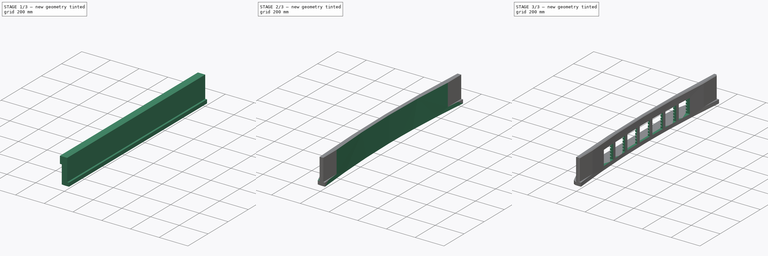
[diagram: build sequence overview — one tinted view per stage of 3, left to right]
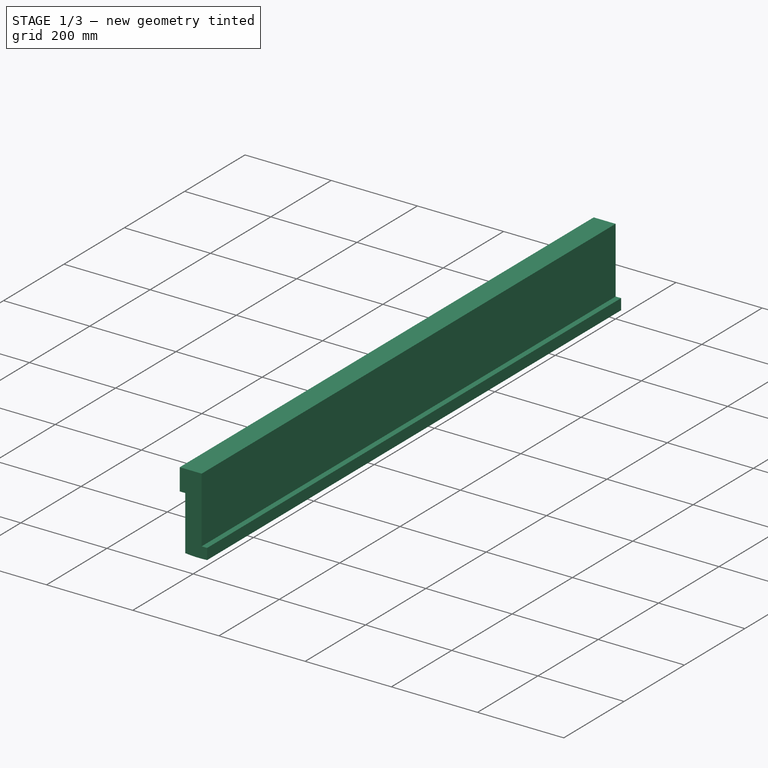
[diagram: stage 1 of 3 — iso view after this stage's code; geometry added in this stage tinted green]
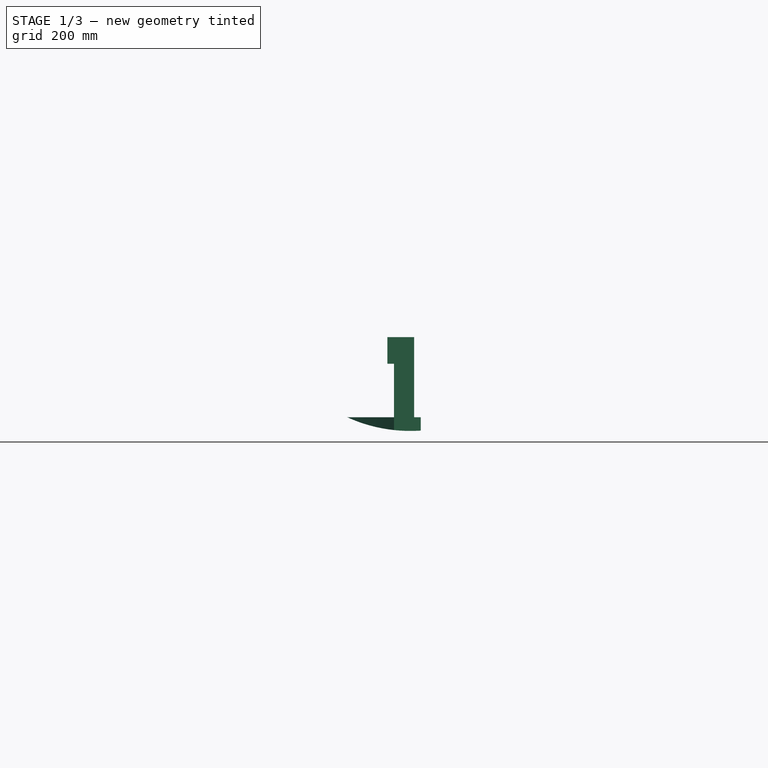
[diagram: stage 1 of 3 — front view after this stage's code; geometry added in this stage tinted green]
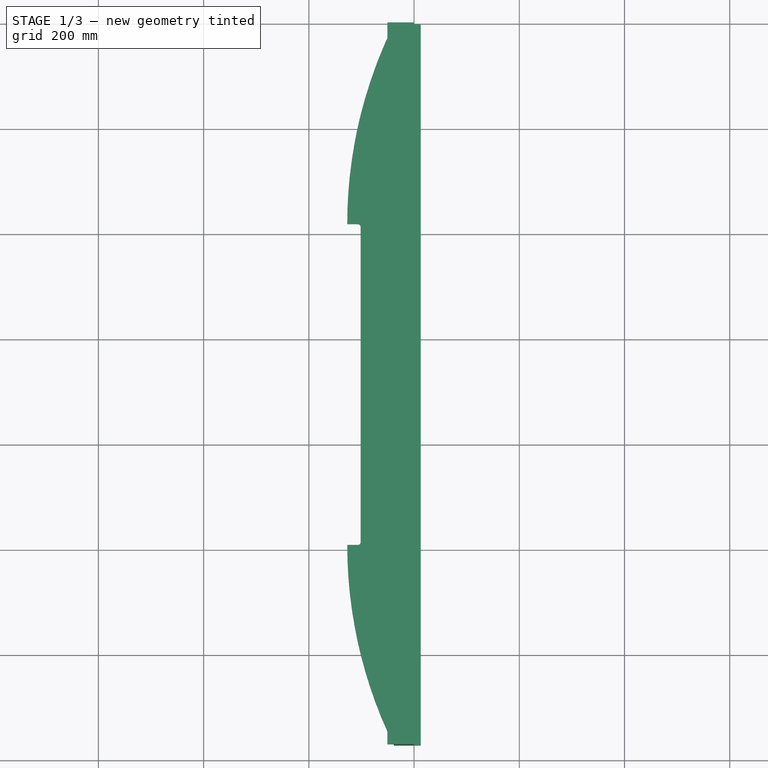
[diagram: stage 1 of 3 — top view after this stage's code; geometry added in this stage tinted green]
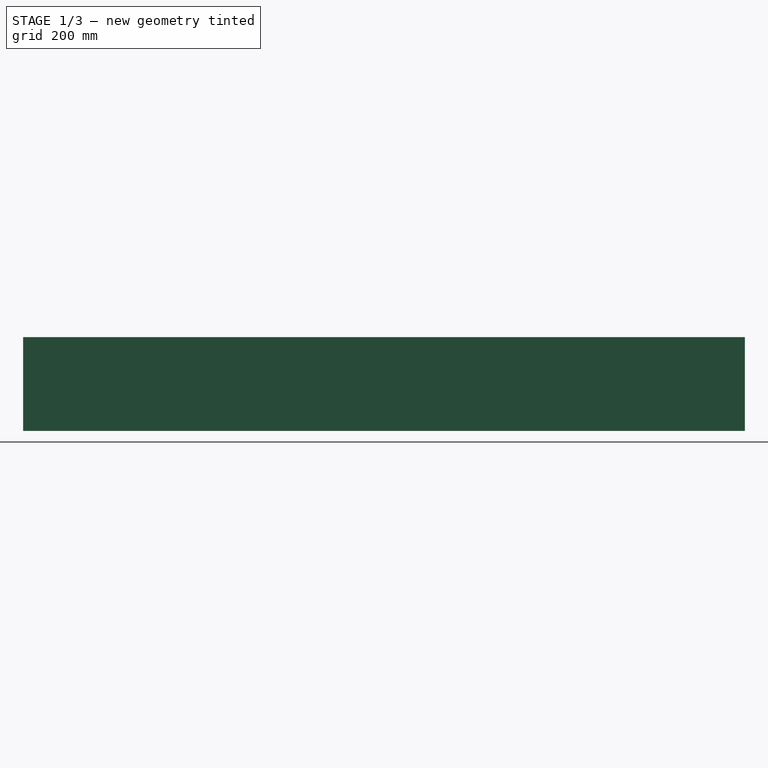
[diagram: stage 1 of 3 — right view after this stage's code; geometry added in this stage tinted green]
FCSTD DOCUMENT  (FreeCAD 1.0R39109 (Git))
Label: Body Kit
License: All rights reserved
LicenseURL: https://en.wikipedia.org/wiki/All_rights_reserved
objects: Sketcher::SketchObject×6, PartDesign::Pocket×5, PartDesign::Pad×1, PartDesign::Fillet×1, PartDesign::Chamfer×1, PartDesign::Body×1
note: 37 computed .brp shape members not serialized (recipe doc carries the construction recipe); baked Part::Feature solids carry a one-line shape summary decoded from their .brp

FEATURE [Sketcher::SketchObject] Sketch
  ArcFitTolerance = 1e-06
  AttachmentSupport = -> [XZ_Plane]
  FullyConstrained = true
  MakeInternals = false
  MapMode = 5
  Placement = pos=(0,0,0) rot=(1,0,0;1.5708rad)
  sketch-geometry (9):
    g0: LineSegment StartX=0 StartY=0 StartZ=0 EndX=0 EndY=152.4 EndZ=0
    g1: LineSegment StartX=0 StartY=152.4 StartZ=0 EndX=-50.8 EndY=152.4 EndZ=0
    g2: LineSegment StartX=-50.8 StartY=152.4 StartZ=0 EndX=-50.8 EndY=101.6 EndZ=0
    g3: LineSegment StartX=-50.8 StartY=101.6 StartZ=0 EndX=-38.1 EndY=101.6 EndZ=0
    g4: LineSegment StartX=-38.1 StartY=101.6 StartZ=0 EndX=-38.1 EndY=0 EndZ=0
    g5: LineSegment StartX=-38.1 StartY=0 StartZ=0 EndX=-127 EndY=0 EndZ=0
    g6: LineSegment StartX=0 StartY=0 StartZ=0 EndX=12.7 EndY=0 EndZ=0
    g7: LineSegment StartX=12.7 StartY=0 StartZ=0 EndX=12.7 EndY=-25.4 EndZ=0
    g8: ArcOfCircle CenterX=-6.87685 CenterY=263.802 CenterZ=0 NormalX=0 NormalY=0 NormalZ=1 AngleXU=0 Radius=289.864 StartAngle=4.28509 EndAngle=4.77998
  constraints (27):
    c: Coincident(g-1,g0)
    c: PointOnObject(g0,g-2)
    c: Coincident(g0,g1)
    c: Horizontal(g1)
    c: Coincident(g1,g2)
    c: Vertical(g2)
    c: Coincident(g2,g3)
    c: Horizontal(g3)
    c: Coincident(g3,g4)
    c: Vertical(g4)
    c: PointOnObject(g4,g-1)
    c: Coincident(g5,g4)
    c: PointOnObject(g5,g-1)
    c: Coincident(g6,g0)
    c: PointOnObject(g6,g-1)
    c: Coincident(g7,g6)
    c: Vertical(g7)
    c: Coincident(g8,g5)
    c: Coincident(g8,g7)
    c: DistanceY(g4,g4) = 101.6
    c: Distance(g2,g0) = 50.8
    c: Distance(g0,g4) = 38.1
    c: DistanceY(g0,g0) = 152.4
    c: DistanceX(g6,g6) = 12.7
    c: DistanceY(g7,g7) = 25.4
    c: DistanceX(g5,g5) = 88.9
    c: Block(g8)
FEATURE [PartDesign::Pad] Pad
  Direction = (0,-1,2e-16)
  Length = 1371.6
  Length2 = 10
  Placement = pos=(0,0,0) rot=(1,0,0;1.5708rad)
  Profile = -> Sketch
  ReferenceAxis = -> Sketch [N_Axis]
  Refine = true
  Suppressed = false
  Type = 0
FEATURE [Sketcher::SketchObject] Sketch001
  ArcFitTolerance = 1e-06
  AttachmentSupport = -> [Pad]
  ExternalGeometry = -> [Pad]
  FullyConstrained = true
  MakeInternals = false
  MapMode = 5
  Placement = pos=(0,0,0) rot=(0,0,1;3.14159rad)
  sketch-geometry (11):
    g0: LineSegment StartX=127 StartY=381 StartZ=0 EndX=101.6 EndY=381 EndZ=0
    g1: LineSegment StartX=101.6 StartY=381 StartZ=0 EndX=101.6 EndY=990.6 EndZ=0
    g2: LineSegment StartX=101.6 StartY=990.6 StartZ=0 EndX=127 EndY=990.6 EndZ=0
    g3: ArcOfCircle CenterX=-733.879 CenterY=381 CenterZ=0 NormalX=0 NormalY=0 NormalZ=1 AngleXU=0 Radius=860.879 StartAngle=5.82472 EndAngle=6.28319
    g4: ArcOfCircle CenterX=-733.879 CenterY=990.6 CenterZ=0 NormalX=0 NormalY=0 NormalZ=1 AngleXU=0 Radius=860.879 StartAngle=1.91161e-08 EndAngle=0.458464
    g5: LineSegment [constr] StartX=127 StartY=381 StartZ=0 EndX=127 EndY=990.6 EndZ=0
    g6: LineSegment StartX=38.1 StartY=0 StartZ=0 EndX=127 EndY=0 EndZ=0
    g7: LineSegment StartX=127 StartY=381 StartZ=0 EndX=127 EndY=990.6 EndZ=0
    g8: LineSegment StartX=127 StartY=990.6 StartZ=0 EndX=127 EndY=1371.6 EndZ=0
    g9: LineSegment StartX=38.1 StartY=1371.6 StartZ=0 EndX=127 EndY=1371.6 EndZ=0
    g10: LineSegment StartX=127 StartY=381 StartZ=0 EndX=127 EndY=0 EndZ=0
  constraints (28):
    c: PointOnObject(g0,g-3)
    c: Horizontal(g0)
    c: Coincident(g0,g1)
    c: Vertical(g1)
    c: Coincident(g1,g2)
    c: PointOnObject(g2,g-3)
    c: Horizontal(g2)
    c: Coincident(g3,g-4)
    c: Coincident(g3,g0)
    c: Coincident(g4,g2)
    c: Coincident(g4,g-5)
    c: Vertical(g4,g3)
    c: Equal(g3,g4)
    c: Coincident(g5,g0)
    c: Coincident(g5,g2)
    c: Tangent(g3,g5)
    c: DistanceX(g0,g0) = 25.4
    c: DistanceY(g1,g1) = 609.6
    c: Coincident(g6,g3)
    c: Coincident(g6,g-4)
    c: Coincident(g7,g0)
    c: Coincident(g7,g2)
    c: Coincident(g8,g2)
    c: Coincident(g8,g-5)
    c: Coincident(g9,g4)
    c: Coincident(g9,g8)
    c: Coincident(g10,g0)
    c: Coincident(g10,g6)
FEATURE [PartDesign::Pocket] Pocket
  BaseFeature = -> Pad
  Direction = (0,0,-1)
  Length = 5
  Length2 = 5
  Placement = pos=(0,0,0) rot=(1,0,0;1.5708rad)
  Profile = -> Sketch001
  ReferenceAxis = -> Sketch001 [N_Axis]
  Refine = true
  Suppressed = false
  Type = 1
FEATURE [PartDesign::Fillet] Fillet
  Base = -> Pocket [Edge39,Edge40]
  BaseFeature = -> Pocket
  Placement = pos=(0,0,0) rot=(1,0,0;1.5708rad)
  Radius = 5
  Refine = true
  SupportTransform = false
  Suppressed = false
  UseAllEdges = false
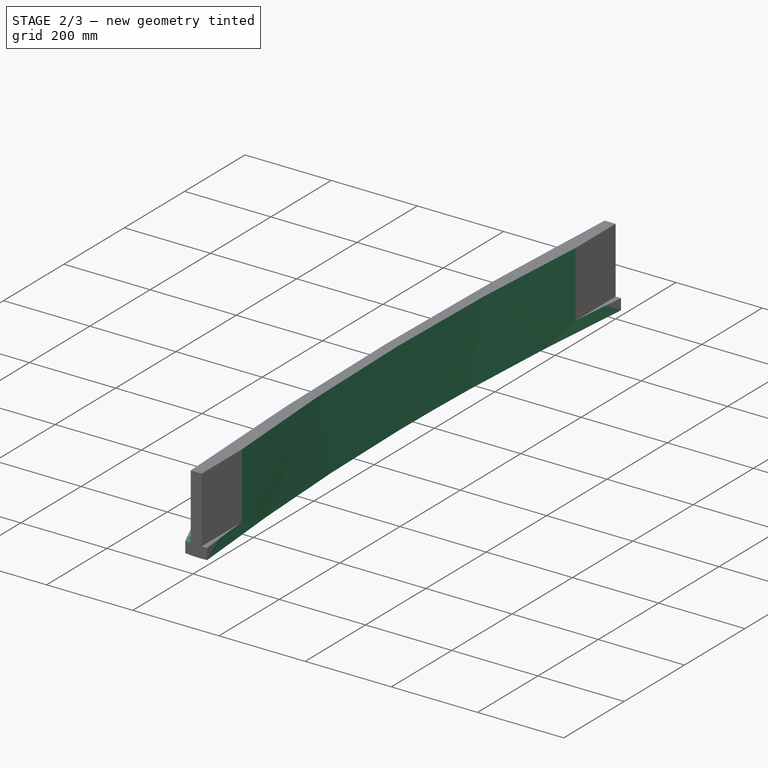
[diagram: stage 2 of 3 — iso view after this stage's code; geometry added in this stage tinted green]
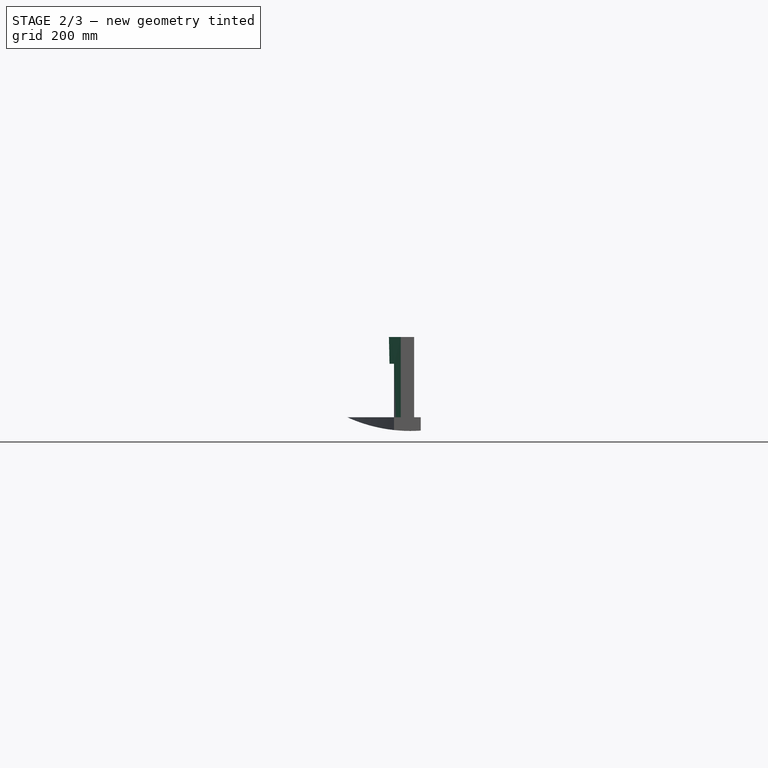
[diagram: stage 2 of 3 — front view after this stage's code; geometry added in this stage tinted green]
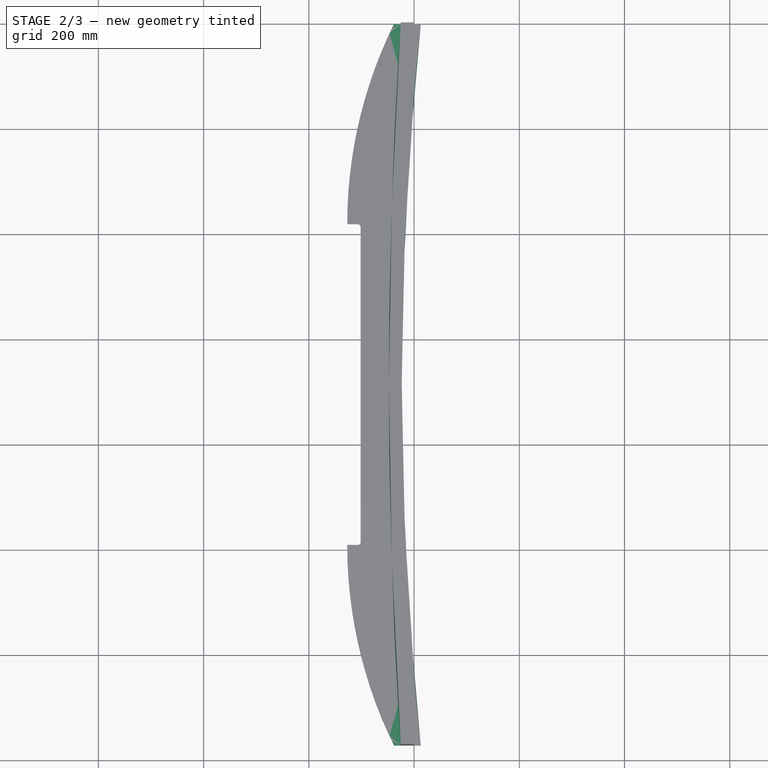
[diagram: stage 2 of 3 — top view after this stage's code; geometry added in this stage tinted green]
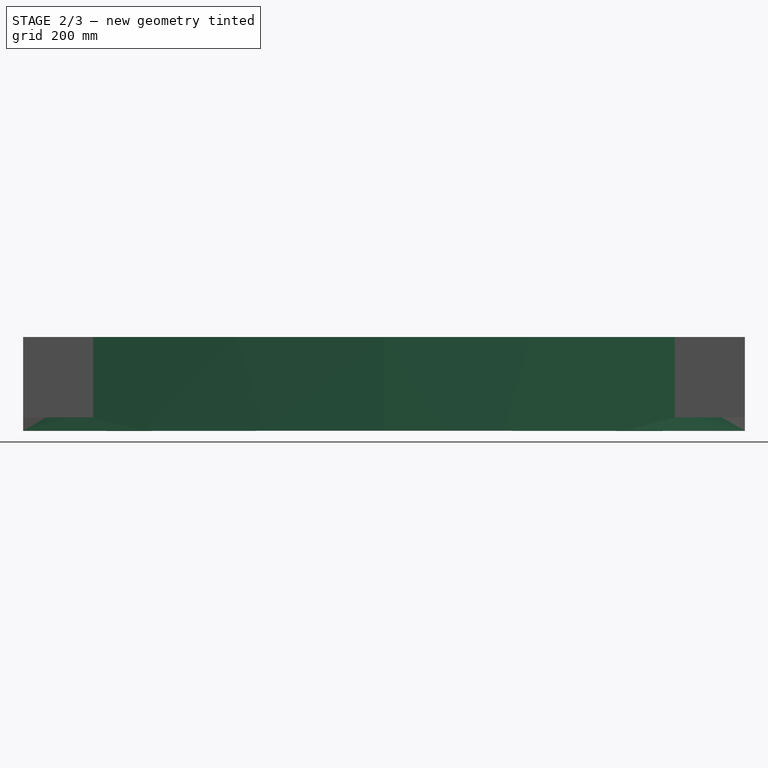
[diagram: stage 2 of 3 — right view after this stage's code; geometry added in this stage tinted green]
FEATURE [Sketcher::SketchObject] Sketch002
  ArcFitTolerance = 1e-06
  AttachmentSupport = -> [Pocket]
  ExternalGeometry = -> [Pocket]
  FullyConstrained = true
  MakeInternals = false
  MapMode = 5
  Placement = pos=(0,0,0) rot=(0,0,1;3.14159rad)
  sketch-geometry (2):
    g0: LineSegment StartX=-12.7 StartY=1371.6 StartZ=0 EndX=-12.7 EndY=6.821e-13 EndZ=0
    g1: ArcOfCircle CenterX=-6489.06 CenterY=685.8 CenterZ=0 NormalX=0 NormalY=0 NormalZ=1 AngleXU=0 Radius=6512.57 StartAngle=6.17769 EndAngle=6.38869
  constraints (5):
    c: Coincident(g1,g0)
    c: Coincident(g1,g0)
    c: Coincident(g0,g-4)
    c: Coincident(g-5,g0)
    c: Block(g1)
FEATURE [PartDesign::Pocket] Pocket001
  BaseFeature = -> Fillet
  Direction = (0,0,-1)
  Length = 5
  Length2 = 5
  Midplane = true
  Placement = pos=(0,0,0) rot=(1,0,0;1.5708rad)
  Profile = -> Sketch002
  ReferenceAxis = -> Sketch002 [N_Axis]
  Refine = true
  Suppressed = false
  Type = 1
FEATURE [Sketcher::SketchObject] Sketch003
  ArcFitTolerance = 1e-06
  AttachmentSupport = -> [Pocket001]
  ExternalGeometry = -> [Pocket001]
  FullyConstrained = true
  MakeInternals = false
  MapMode = 5
  Placement = pos=(0,6.71e-14,152.4) rot=(0,0,1;3.14159rad)
  sketch-geometry (8):
    g0: ArcOfCircle CenterX=-10461.7 CenterY=685.8 CenterZ=0 NormalX=0 NormalY=0 NormalZ=1 AngleXU=0 Radius=10509.5 StartAngle=6.21788 EndAngle=6.34849
    g1: LineSegment [constr] StartX=25.4 StartY=1371.6 StartZ=0 EndX=0 EndY=1371.6 EndZ=0
    g2: LineSegment [constr] StartX=50.8 StartY=1371.6 StartZ=0 EndX=25.4 EndY=1371.6 EndZ=0
    g3: LineSegment [constr] StartX=50.8 StartY=2.16e-12 StartZ=0 EndX=25.4 EndY=2.16e-12 EndZ=0
    g4: LineSegment [constr] StartX=25.4 StartY=2.16e-12 StartZ=0 EndX=0 EndY=0 EndZ=0
    g5: LineSegment StartX=25.4 StartY=1371.6 StartZ=0 EndX=50.8 EndY=1371.6 EndZ=0
    g6: LineSegment StartX=50.8 StartY=1371.6 StartZ=0 EndX=50.8 EndY=2.2737e-12 EndZ=0
    g7: LineSegment StartX=50.8 StartY=2.16e-12 StartZ=0 EndX=25.4 EndY=2.16e-12 EndZ=0
  constraints (19):
    c: PointOnObject(g0,g-3)
    c: Coincident(g1,g0)
    c: Coincident(g1,g-3)
    c: Coincident(g2,g-3)
    c: Coincident(g2,g0)
    c: Equal(g2,g1)
    c: Coincident(g3,g-4)
    c: Coincident(g3,g0)
    c: Horizontal(g3)
    c: Coincident(g4,g0)
    c: Coincident(g4,g-1)
    c: Equal(g3,g4)
    c: Distance(g0,g-5) = 3
    c: Coincident(g5,g0)
    c: Coincident(g5,g2)
    c: Coincident(g2,g6)
    c: Coincident(g6,g3)
    c: Coincident(g6,g7)
    c: Coincident(g7,g0)
FEATURE [PartDesign::Pocket] Pocket002
  BaseFeature = -> Pocket001
  Direction = (0,0,-1)
  Length = 152.4
  Length2 = 5
  Placement = pos=(0,0,0) rot=(1,0,0;1.5708rad)
  Profile = -> Sketch003
  ReferenceAxis = -> Sketch003 [N_Axis]
  Refine = true
  Suppressed = false
  Type = 0
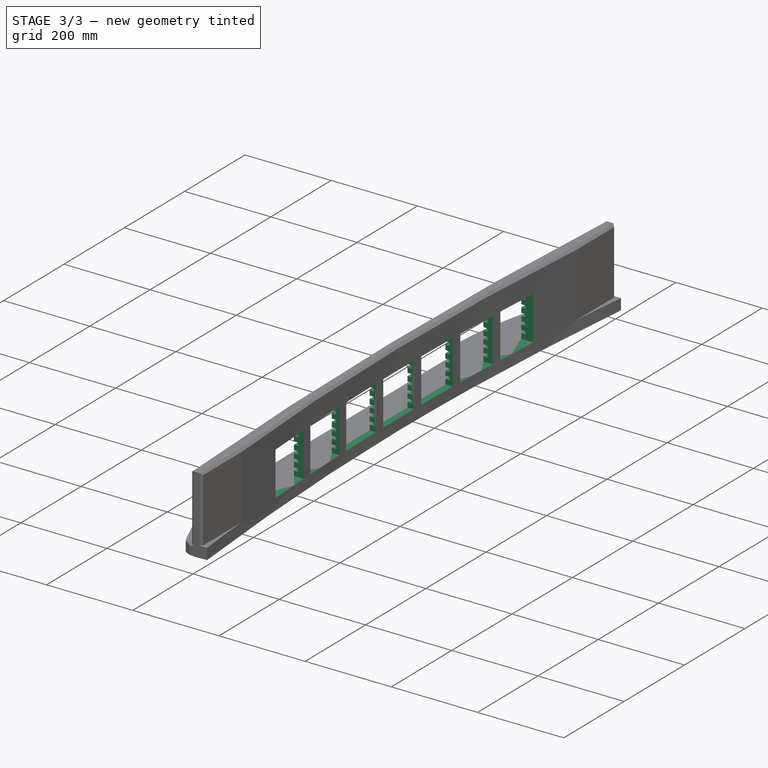
[diagram: stage 3 of 3 — iso view after this stage's code; geometry added in this stage tinted green]
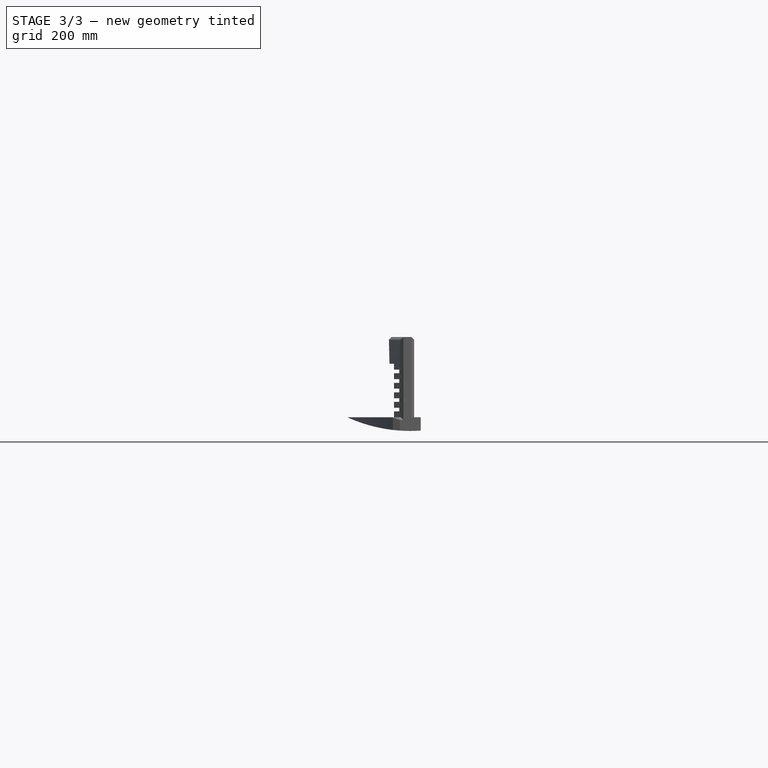
[diagram: stage 3 of 3 — front view after this stage's code; geometry added in this stage tinted green]
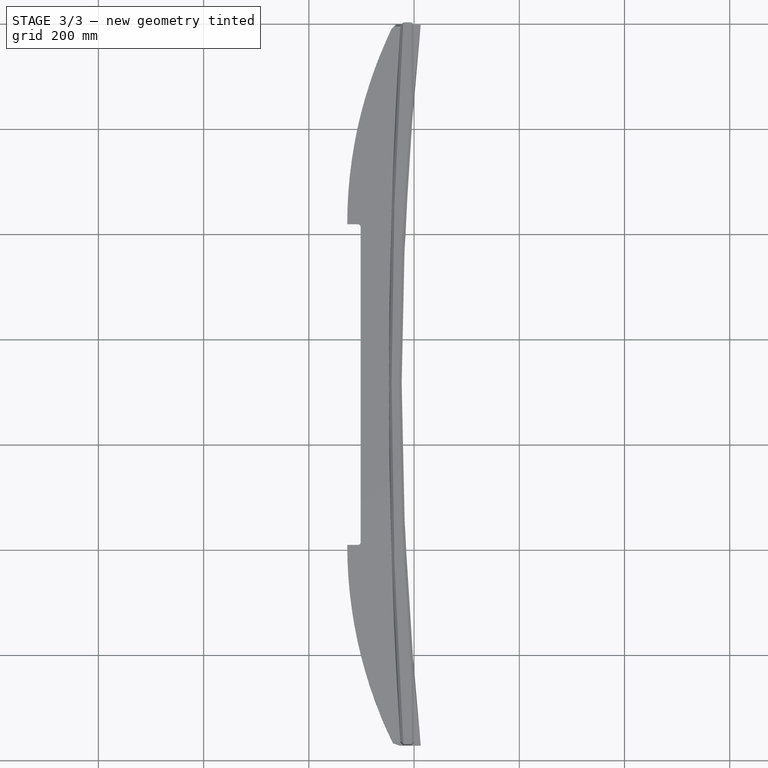
[diagram: stage 3 of 3 — top view after this stage's code; geometry added in this stage tinted green]
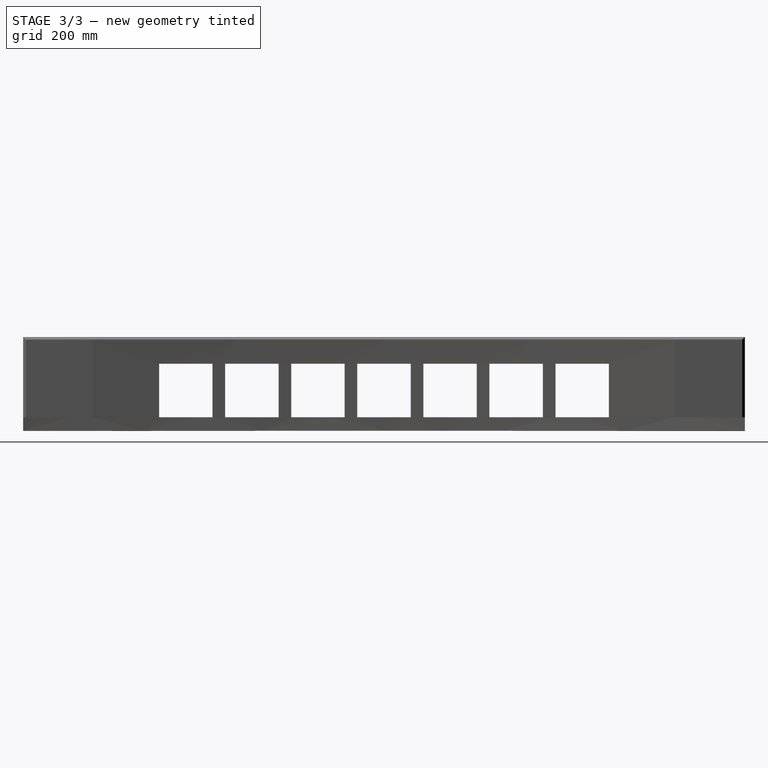
[diagram: stage 3 of 3 — right view after this stage's code; geometry added in this stage tinted green]
FEATURE [Sketcher::SketchObject] Sketch004
  ArcFitTolerance = 1e-06
  AttachmentSupport = -> [Pocket002]
  ExternalGeometry = -> [Pocket002]
  FullyConstrained = true
  MakeInternals = false
  MapMode = 5
  Placement = pos=(-38.1,0,0) rot=(0.707107,0,-0.707107;3.14159rad)
  sketch-geometry (36):
    g0: LineSegment StartX=-101.6 StartY=258.327 StartZ=0 EndX=-8.53e-14 EndY=258.327 EndZ=0
    g1: LineSegment StartX=-7.99e-14 StartY=258.327 StartZ=0 EndX=-7.99e-14 EndY=359.927 EndZ=0
    g2: LineSegment StartX=-7.99e-14 StartY=359.927 StartZ=0 EndX=-101.6 EndY=359.927 EndZ=0
    g3: LineSegment StartX=-101.6 StartY=359.927 StartZ=0 EndX=-101.6 EndY=258.327 EndZ=0
    g4: LineSegment StartX=-101.6 StartY=1011.67 StartZ=0 EndX=-2.416e-13 EndY=1011.67 EndZ=0
    g5: LineSegment StartX=-2.472e-13 StartY=1011.67 StartZ=0 EndX=-2.472e-13 EndY=1113.27 EndZ=0
    g6: LineSegment StartX=-2.472e-13 StartY=1113.27 StartZ=0 EndX=-101.6 EndY=1113.27 EndZ=0
    g7: LineSegment StartX=-101.6 StartY=1113.27 StartZ=0 EndX=-101.6 EndY=1011.67 EndZ=0
    g8: LineSegment StartX=-101.6 StartY=886.115 StartZ=0 EndX=-2.132e-13 EndY=886.115 EndZ=0
    g9: LineSegment StartX=-2.193e-13 StartY=886.115 StartZ=0 EndX=-2.193e-13 EndY=987.715 EndZ=0
    g10: LineSegment StartX=-2.193e-13 StartY=987.715 StartZ=0 EndX=-101.6 EndY=987.715 EndZ=0
    g11: LineSegment StartX=-101.6 StartY=987.715 StartZ=0 EndX=-101.6 EndY=886.115 EndZ=0
    g12: LineSegment StartX=-101.6 StartY=509.442 StartZ=0 EndX=-1.421e-13 EndY=509.442 EndZ=0
    g13: LineSegment StartX=-1.357e-13 StartY=509.442 StartZ=0 EndX=-1.357e-13 EndY=611.042 EndZ=0
    g14: LineSegment StartX=-1.357e-13 StartY=611.042 StartZ=0 EndX=-101.6 EndY=611.042 EndZ=0
    g15: LineSegment StartX=-101.6 StartY=611.042 StartZ=0 EndX=-101.6 EndY=509.442 EndZ=0
    g16: LineSegment StartX=-101.6 StartY=383.885 StartZ=0 EndX=-1.137e-13 EndY=383.885 EndZ=0
    g17: LineSegment StartX=-1.078e-13 StartY=383.885 StartZ=0 EndX=-1.078e-13 EndY=485.485 EndZ=0
    g18: LineSegment StartX=-1.078e-13 StartY=485.485 StartZ=0 EndX=-101.6 EndY=485.485 EndZ=0
    g19: LineSegment StartX=-101.6 StartY=485.485 StartZ=0 EndX=-101.6 EndY=383.885 EndZ=0
    g20: LineSegment StartX=-101.6 StartY=760.558 StartZ=0 EndX=-1.847e-13 EndY=760.558 EndZ=0
    g21: LineSegment StartX=-1.914e-13 StartY=760.558 StartZ=0 EndX=-1.914e-13 EndY=862.158 EndZ=0
    g22: LineSegment StartX=-1.914e-13 StartY=862.158 StartZ=0 EndX=-101.6 EndY=862.158 EndZ=0
    g23: LineSegment StartX=-101.6 StartY=862.158 StartZ=0 EndX=-101.6 EndY=760.558 EndZ=0
    g24: LineSegment StartX=-101.6 StartY=635 StartZ=0 EndX=-1.705e-13 EndY=635 EndZ=0
    g25: LineSegment StartX=-1.636e-13 StartY=635 StartZ=0 EndX=-1.636e-13 EndY=736.6 EndZ=0
    g26: LineSegment StartX=-1.636e-13 StartY=736.6 StartZ=0 EndX=-101.6 EndY=736.6 EndZ=0
    g27: LineSegment StartX=-101.6 StartY=736.6 StartZ=0 EndX=-101.6 EndY=635 EndZ=0
    g28: LineSegment [constr] StartX=-5.2e-14 StartY=234.37 StartZ=0 EndX=-7.99e-14 EndY=258.327 EndZ=0
    g29: LineSegment [constr] StartX=-7.99e-14 StartY=359.927 StartZ=0 EndX=-1.078e-13 EndY=383.885 EndZ=0
    g30: LineSegment [constr] StartX=-1.078e-13 StartY=485.485 StartZ=0 EndX=-1.357e-13 EndY=509.442 EndZ=0
    g31: LineSegment [constr] StartX=-1.357e-13 StartY=611.042 StartZ=0 EndX=-1.636e-13 EndY=635 EndZ=0
    g32: LineSegment [constr] StartX=-1.636e-13 StartY=736.6 StartZ=0 EndX=-1.914e-13 EndY=760.558 EndZ=0
    g33: LineSegment [constr] StartX=-1.914e-13 StartY=862.158 StartZ=0 EndX=-2.193e-13 EndY=886.115 EndZ=0
    g34: LineSegment [constr] StartX=-2.193e-13 StartY=987.715 StartZ=0 EndX=-2.472e-13 EndY=1011.67 EndZ=0
    g35: LineSegment [constr] StartX=-2.472e-13 StartY=1113.27 StartZ=0 EndX=-1.738e-13 EndY=1137.23 EndZ=0
  constraints (100):
    c: Coincident(g0,g1)
    c: Coincident(g1,g2)
    c: Coincident(g2,g3)
    c: Coincident(g3,g0)
    c: Horizontal(g0)
    c: Horizontal(g2)
    c: Vertical(g1)
    c: Vertical(g3)
    c: PointOnObject(g0,g-3)
    c: PointOnObject(g1,g-5)
    c: Equal(g2,g3)
    c: Coincident(g4,g5)
    c: Coincident(g5,g6)
    c: Coincident(g6,g7)
    c: Coincident(g7,g4)
    c: Horizontal(g4)
    c: Horizontal(g6)
    c: Vertical(g5)
    c: Vertical(g7)
    c: PointOnObject(g4,g-3)
    c: PointOnObject(g5,g-5)
    c: Coincident(g8,g9)
    c: Coincident(g9,g10)
    c: Coincident(g10,g11)
    c: Coincident(g11,g8)
    c: Horizontal(g8)
    c: Horizontal(g10)
    c: Vertical(g9)
    c: Vertical(g11)
    c: PointOnObject(g8,g-3)
    c: PointOnObject(g9,g-5)
    c: Coincident(g12,g13)
    c: Coincident(g13,g14)
    c: Coincident(g14,g15)
    c: Coincident(g15,g12)
    c: Horizontal(g12)
    c: Horizontal(g14)
    c: Vertical(g13)
    c: Vertical(g15)
    c: PointOnObject(g12,g-3)
    c: PointOnObject(g13,g-5)
    c: Coincident(g16,g17)
    c: Coincident(g17,g18)
    c: Coincident(g18,g19)
    c: Coincident(g19,g16)
    c: Horizontal(g16)
    c: Horizontal(g18)
    c: Vertical(g17)
    c: Vertical(g19)
    c: PointOnObject(g16,g-3)
    c: PointOnObject(g17,g-5)
    c: Equal(g18,g19)
    c: Equal(g14,g15)
    c: Equal(g10,g11)
    c: Equal(g6,g7)
    c: Coincident(g20,g21)
    c: Coincident(g21,g22)
    c: Coincident(g22,g23)
    c: Coincident(g23,g20)
    c: Horizontal(g20)
    c: Horizontal(g22)
    c: Vertical(g21)
    c: Vertical(g23)
    c: PointOnObject(g20,g-3)
    c: PointOnObject(g21,g-5)
    c: Equal(g22,g23)
    c: Coincident(g24,g25)
    c: Coincident(g25,g26)
    c: Coincident(g26,g27)
    c: Coincident(g27,g24)
    c: Horizontal(g24)
    c: Horizontal(g26)
    c: Vertical(g25)
    c: Vertical(g27)
    c: PointOnObject(g24,g-3)
    c: PointOnObject(g25,g-5)
    c: Equal(g26,g27)
    c: Coincident(g28,g-5)
    c: Coincident(g28,g0)
    c: Coincident(g29,g1)
    c: Coincident(g29,g16)
    c: Coincident(g30,g17)
    c: Coincident(g30,g12)
    c: Coincident(g31,g13)
    c: Coincident(g31,g24)
    c: Coincident(g32,g25)
    c: Coincident(g32,g20)
    c: Coincident(g33,g21)
    c: Coincident(g33,g8)
    c: Coincident(g34,g9)
    c: Coincident(g34,g4)
    c: Coincident(g35,g5)
    c: Coincident(g35,g-6)
    c: Equal(g28,g29)
    c: Equal(g29,g30)
    c: Equal(g30,g31)
    c: Equal(g31,g32)
    c: Equal(g32,g33)
    c: Equal(g33,g34)
    c: Equal(g34,g35)
FEATURE [PartDesign::Pocket] Pocket003
  BaseFeature = -> Pocket002
  Direction = (1,0,2e-16)
  Length = 5
  Length2 = 5
  Placement = pos=(0,0,0) rot=(1,0,0;1.5708rad)
  Profile = -> Sketch004
  ReferenceAxis = -> Sketch004 [N_Axis]
  Refine = true
  Suppressed = false
  Type = 1
FEATURE [Sketcher::SketchObject] Sketch005
  ArcFitTolerance = 1e-06
  AttachmentSupport = -> [Pocket003]
  ExternalGeometry = -> [Pocket003]
  FullyConstrained = true
  MakeInternals = false
  MapMode = 5
  Placement = pos=(-38.1,0,0) rot=(0.707107,0,-0.707107;3.14159rad)
  sketch-geometry (28):
    g0: LineSegment StartX=-90.5002 StartY=1371.6 StartZ=0 EndX=-90.5002 EndY=2.0464e-12 EndZ=0
    g1: LineSegment StartX=-83.5002 StartY=2.1075e-12 StartZ=0 EndX=-83.5002 EndY=1371.6 EndZ=0
    g2: LineSegment StartX=-90.5002 StartY=1371.6 StartZ=0 EndX=-83.5002 EndY=1371.6 EndZ=0
    g3: LineSegment StartX=-90.5002 StartY=2.1075e-12 StartZ=0 EndX=-83.5002 EndY=2.1075e-12 EndZ=0
    g4: LineSegment StartX=-72.4003 StartY=1371.6 StartZ=0 EndX=-72.4003 EndY=2.0464e-12 EndZ=0
    g5: LineSegment StartX=-72.4003 StartY=2.1115e-12 StartZ=0 EndX=-65.4003 EndY=2.1115e-12 EndZ=0
    g6: LineSegment StartX=-65.4003 StartY=2.1115e-12 StartZ=0 EndX=-65.4003 EndY=1371.6 EndZ=0
    g7: LineSegment StartX=-65.4003 StartY=1371.6 StartZ=0 EndX=-72.4003 EndY=1371.6 EndZ=0
    g8: LineSegment StartX=-54.3005 StartY=2.1155e-12 StartZ=0 EndX=-47.3005 EndY=2.1155e-12 EndZ=0
    g9: LineSegment StartX=-47.3005 StartY=2.1155e-12 StartZ=0 EndX=-47.3005 EndY=1371.6 EndZ=0
    g10: LineSegment StartX=-47.3005 StartY=1371.6 StartZ=0 EndX=-54.3005 EndY=1371.6 EndZ=0
    g11: LineSegment StartX=-36.2007 StartY=1371.6 StartZ=0 EndX=-36.2007 EndY=2.0464e-12 EndZ=0
    g12: LineSegment StartX=-36.2007 StartY=2.1195e-12 StartZ=0 EndX=-29.2007 EndY=2.1195e-12 EndZ=0
    g13: LineSegment StartX=-29.2007 StartY=2.1195e-12 StartZ=0 EndX=-29.2007 EndY=1371.6 EndZ=0
    g14: LineSegment StartX=-29.2007 StartY=1371.6 StartZ=0 EndX=-36.2007 EndY=1371.6 EndZ=0
    g15: LineSegment StartX=-18.1008 StartY=1371.6 StartZ=0 EndX=-18.1008 EndY=2.0464e-12 EndZ=0
    g16: LineSegment StartX=-18.1008 StartY=2.1235e-12 StartZ=0 EndX=-11.1008 EndY=2.1235e-12 EndZ=0
    g17: LineSegment StartX=-11.1008 StartY=2.1235e-12 StartZ=0 EndX=-11.1008 EndY=1371.6 EndZ=0
    g18: LineSegment StartX=-11.1008 StartY=1371.6 StartZ=0 EndX=-18.1008 EndY=1371.6 EndZ=0
    g19: LineSegment StartX=-54.3005 StartY=1371.6 StartZ=0 EndX=-54.3005 EndY=2.0464e-12 EndZ=0
    g20: LineSegment [constr] StartX=-101.6 StartY=234.37 StartZ=0 EndX=-101.6 EndY=2.1032e-12 EndZ=0
    g21: LineSegment [constr] StartX=0 StartY=234.37 StartZ=0 EndX=0 EndY=0 EndZ=0
    g22: LineSegment [constr] StartX=-101.6 StartY=2.1035e-12 StartZ=0 EndX=-90.5002 EndY=2.1075e-12 EndZ=0
    g23: LineSegment [constr] StartX=-83.5002 StartY=2.1075e-12 StartZ=0 EndX=-72.4003 EndY=2.1115e-12 EndZ=0
    g24: LineSegment [constr] StartX=-65.4003 StartY=2.1115e-12 StartZ=0 EndX=-54.3005 EndY=2.1155e-12 EndZ=0
    g25: LineSegment [constr] StartX=-47.3005 StartY=2.1155e-12 StartZ=0 EndX=-36.2007 EndY=2.1195e-12 EndZ=0
    g26: LineSegment [constr] StartX=-29.2007 StartY=2.1195e-12 StartZ=0 EndX=-18.1008 EndY=2.1235e-12 EndZ=0
    g27: LineSegment [constr] StartX=-11.1008 StartY=2.1235e-12 StartZ=0 EndX=0 EndY=0 EndZ=0
  constraints (77):
    c: Vertical(g0)
    c: Vertical(g1)
    c: Coincident(g2,g0)
    c: Coincident(g2,g1)
    c: Coincident(g3,g0)
    c: Coincident(g3,g1)
    c: Coincident(g4,g5)
    c: Coincident(g5,g6)
    c: Coincident(g6,g7)
    c: Coincident(g7,g4)
    c: Vertical(g4)
    c: Vertical(g6)
    c: Horizontal(g5)
    c: Horizontal(g7)
    c: Coincident(g8,g9)
    c: Coincident(g9,g10)
    c: Vertical(g9)
    c: Horizontal(g8)
    c: Horizontal(g10)
    c: Coincident(g11,g12)
    c: Coincident(g12,g13)
    c: Coincident(g13,g14)
    c: Coincident(g14,g11)
    c: Vertical(g11)
    c: Vertical(g13)
    c: Horizontal(g12)
    c: Horizontal(g14)
    c: Coincident(g15,g16)
    c: Coincident(g16,g17)
    c: Coincident(g17,g18)
    c: Coincident(g18,g15)
    c: Vertical(g15)
    c: Vertical(g17)
    c: Horizontal(g16)
    c: Horizontal(g18)
    c: Equal(g3,g5)
    c: Equal(g5,g8)
    c: Equal(g8,g12)
    c: Equal(g12,g16)
    c: Coincident(g19,g10)
    c: Coincident(g19,g8)
    c: Vertical(g19)
    c: DistanceX(g2,g2) = 7
    c: Horizontal(g2)
    c: PointOnObject(g1,g-8)
    c: PointOnObject(g6,g-8)
    c: PointOnObject(g9,g-8)
    c: PointOnObject(g13,g-8)
    c: PointOnObject(g17,g-8)
    c: Horizontal(g3)
    c: PointOnObject(g1,g-9)
    c: PointOnObject(g5,g-9)
    c: PointOnObject(g8,g-9)
    c: PointOnObject(g12,g-9)
    c: PointOnObject(g16,g-9)
    c: Coincident(g20,g-5)
    c: PointOnObject(g20,g-9)
    c: Vertical(g20)
    c: Coincident(g21,g-6)
    c: Coincident(g21,g-1)
    c: Coincident(g22,g20)
    c: Coincident(g22,g0)
    c: Coincident(g23,g1)
    c: Coincident(g23,g4)
    c: Coincident(g24,g5)
    c: Coincident(g24,g8)
    c: Coincident(g25,g8)
    c: Coincident(g25,g11)
    c: Coincident(g26,g12)
    c: Coincident(g26,g15)
    c: Coincident(g27,g16)
    c: Coincident(g27,g21)
    c: Equal(g22,g23)
    c: Equal(g23,g25)
    c: Equal(g23,g24)
    c: Equal(g24,g25)
    c: Equal(g25,g26)
FEATURE [PartDesign::Pocket] Pocket004
  BaseFeature = -> Pocket003
  Direction = (1,0,2e-16)
  Length = 10
  Length2 = 5
  Placement = pos=(0,0,0) rot=(1,0,0;1.5708rad)
  Profile = -> Sketch005
  ReferenceAxis = -> Sketch005 [N_Axis]
  Refine = true
  Suppressed = false
  Type = 0
FEATURE [PartDesign::Chamfer] Chamfer
  Angle = 45
  Base = -> Pocket004 [Edge111,Edge158,Edge114,Edge487,Edge186,Edge455,Edge485,Edge109,Edge12,Edge43,Edge457,Edge108]
  BaseFeature = -> Pocket004
  ChamferType = 2
  FlipDirection = false
  Placement = pos=(0,0,0) rot=(1,0,0;1.5708rad)
  Refine = true
  Size = 5
  Size2 = 1
  SupportTransform = false
  Suppressed = false
  UseAllEdges = false
FEATURE [PartDesign::Body] Body
  AllowCompound = false
  Group = -> [Sketch,Pad,Sketch001,Pocket,Fillet,Sketch002,Pocket001,Sketch003,Pocket002,Sketch004,Pocket003,Sketch005,Pocket004,Chamfer]
  Origin = -> Origin
  Tip = -> Chamfer
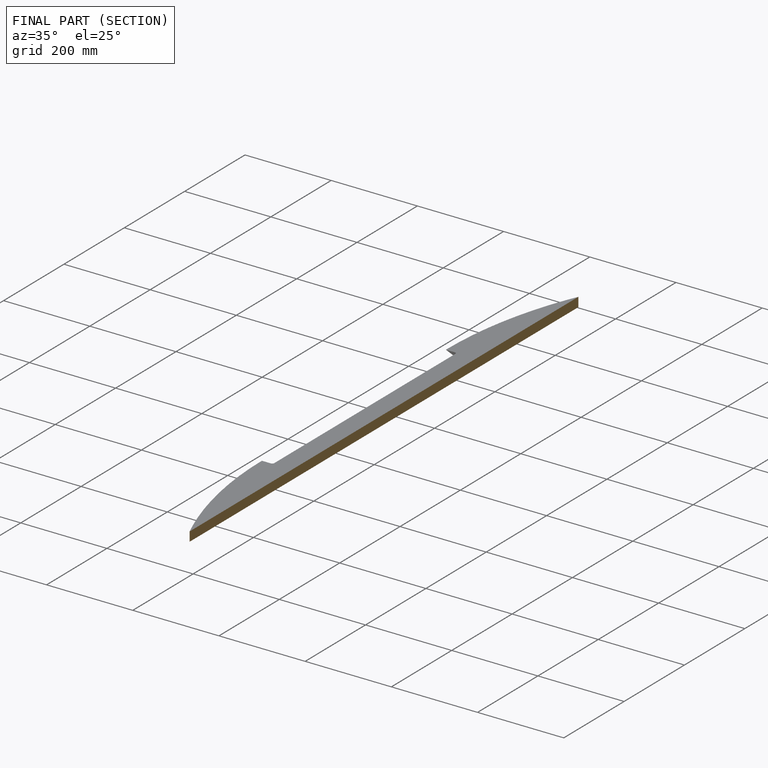
[diagram: finished part — half-section view (interior)]
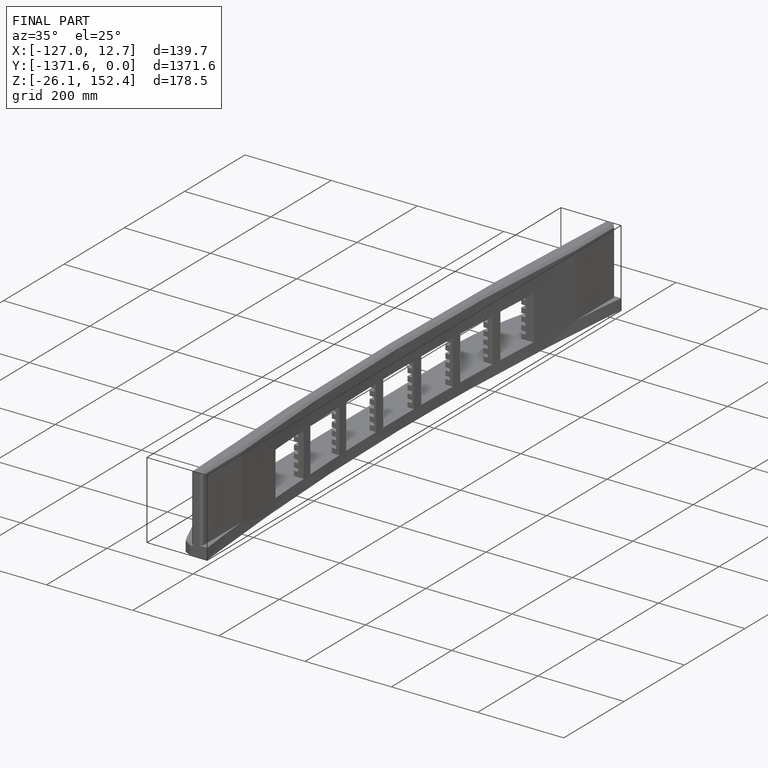
[diagram: finished part — iso view with bounding-box wireframe]
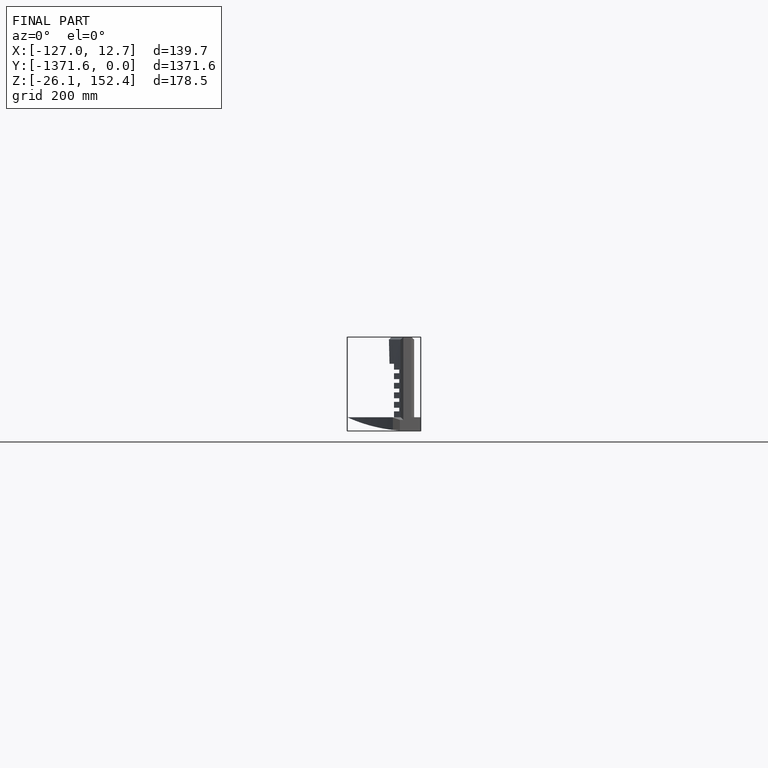
[diagram: finished part — front view with bounding-box wireframe]
